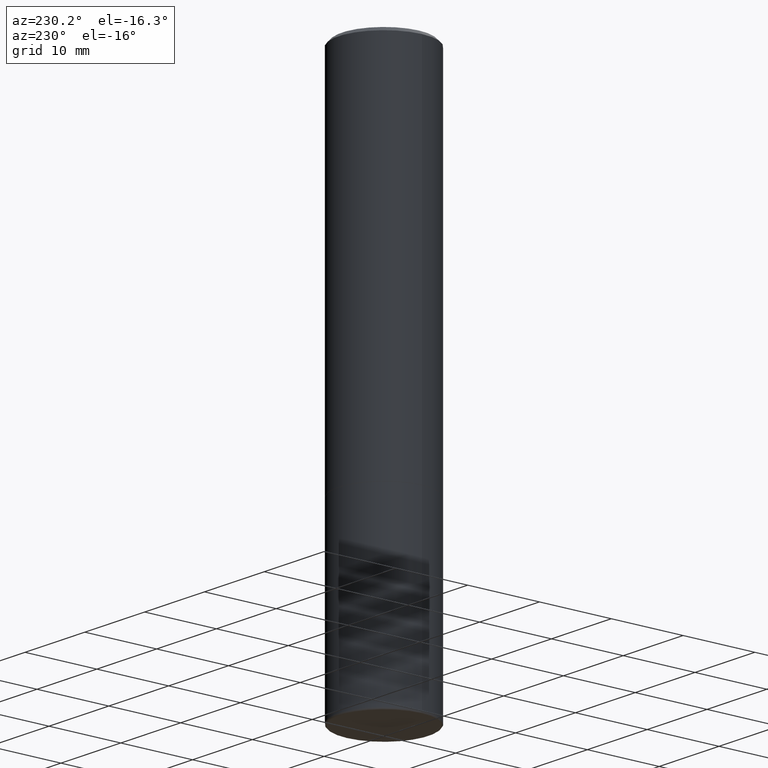
[diagram: clean part render]
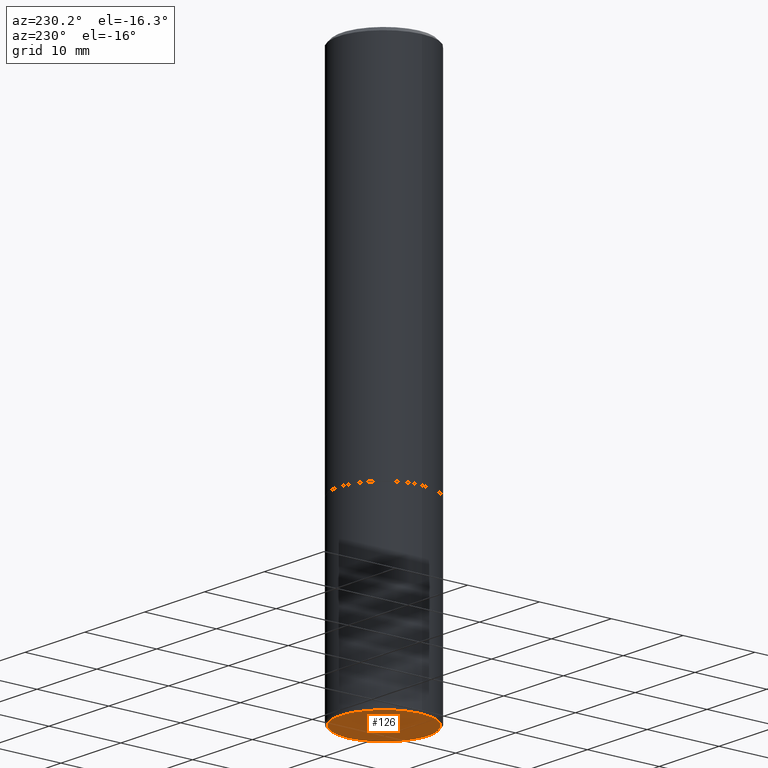
[diagram: same view with one face highlighted and labeled with its STEP entity id]
A machine part, auxiliary view. The second image highlights one B-rep face of the part: STEP entity #126.
In plain terms, the highlighted planar face has unit normal (0, -0, -1).
Its self-contained STEP definition (entity closure, byte-faithful):
#29 = FACE_OUTER_BOUND ( 'NONE', #86, .T. ) ;
#48 = CIRCLE ( 'NONE', #411, 0.2400000000000000466 ) ;
#77 = CIRCLE ( 'NONE', #405, 0.2400000000000000466 ) ;
#86 = EDGE_LOOP ( 'NONE', ( #111, #331 ) ) ;
#91 = DIRECTION ( 'NONE',  ( 1.000000000000000000, -6.982962677686266711E-15, 0.000000000000000000 ) ) ;
#103 = EDGE_CURVE ( 'NONE', #338, #268, #48, .T. ) ;
#111 = ORIENTED_EDGE ( 'NONE', *, *, #413, .F. ) ;
#126 = ADVANCED_FACE ( 'NONE', ( #29 ), #293, .T. ) ;
#181 = CARTESIAN_POINT ( 'NONE',  ( 0.2400000000000000466, -1.215035505917413973E-14, -2.999999999999999556 ) ) ;
#196 = CARTESIAN_POINT ( 'NONE',  ( 7.336406418555408669E-29, -1.047444401652943478E-14, -2.999999999999999556 ) ) ;
#198 = DIRECTION ( 'NONE',  ( 1.000000000000000000, -6.982962677686266711E-15, 0.000000000000000000 ) ) ;
#220 = AXIS2_PLACEMENT_3D ( 'NONE', #352, #258, #410 ) ;
#241 = DIRECTION ( 'NONE',  ( -2.445468806185136597E-29, 3.491481338843145583E-15, 1.000000000000000000 ) ) ;
#258 = DIRECTION ( 'NONE',  ( 2.438088387897960049E-29, -3.491481338843145188E-15, -1.000000000000000000 ) ) ;
#268 = VERTEX_POINT ( 'NONE', #181 ) ;
#293 = PLANE ( 'NONE',  #220 ) ;
#296 = CARTESIAN_POINT ( 'NONE',  ( 7.336406418555408669E-29, -1.047444401652943478E-14, -2.999999999999999556 ) ) ;
#304 = CARTESIAN_POINT ( 'NONE',  ( -0.2400000000000000466, -8.716156907222976683E-15, -2.999999999999999556 ) ) ;
#324 = DIRECTION ( 'NONE',  ( -2.445468806185136597E-29, 3.491481338843145583E-15, 1.000000000000000000 ) ) ;
#331 = ORIENTED_EDGE ( 'NONE', *, *, #103, .F. ) ;
#338 = VERTEX_POINT ( 'NONE', #304 ) ;
#352 = CARTESIAN_POINT ( 'NONE',  ( 1.210550456377282398E-28, -3.644824032368776532E-15, -2.999999999999999556 ) ) ;
#405 = AXIS2_PLACEMENT_3D ( 'NONE', #296, #241, #91 ) ;
#410 = DIRECTION ( 'NONE',  ( -1.000000000000000000, 6.982962677686265922E-15, -4.876176775795935793E-29 ) ) ;
#411 = AXIS2_PLACEMENT_3D ( 'NONE', #196, #324, #198 ) ;
#413 = EDGE_CURVE ( 'NONE', #268, #338, #77, .T. ) ;